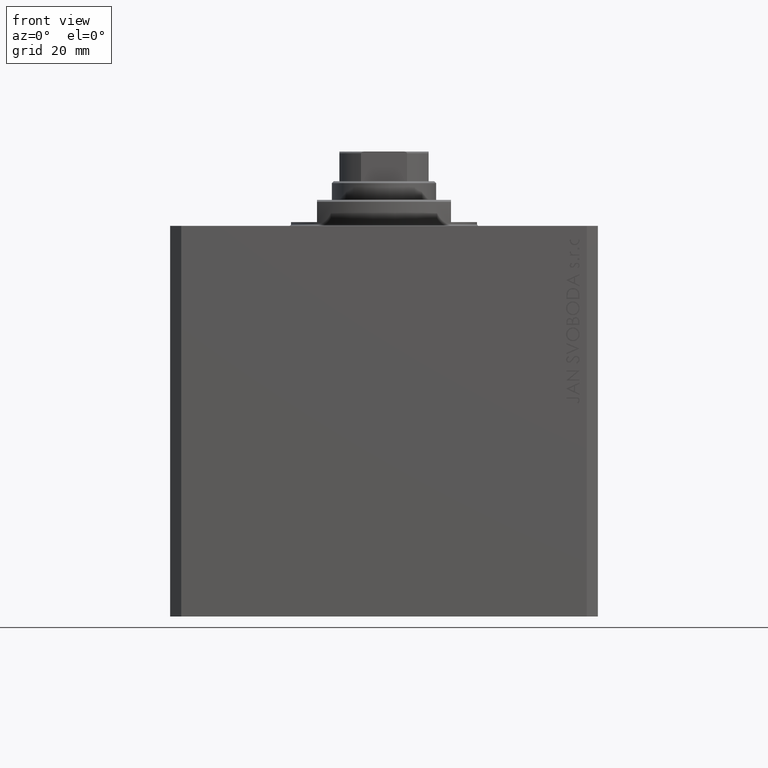
[diagram: clean part render]
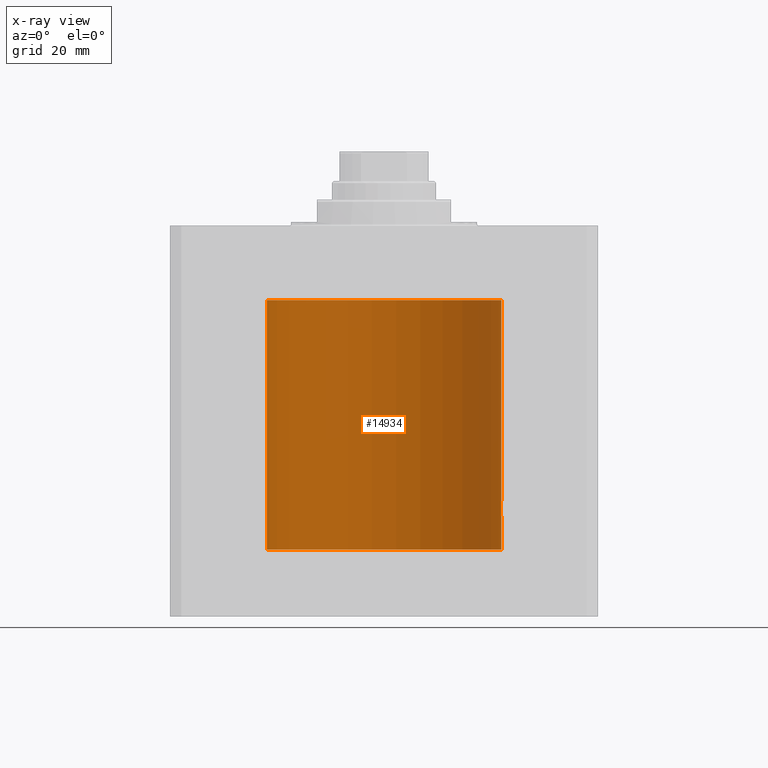
[diagram: x-ray — body ghosted, one internal face saturated and labeled with its STEP entity id]
A machine part, front view, then the same camera in x-ray: the body is ghosted and one INTERNAL B-rep face — a face not visible from any outside direction — is saturated and labeled: STEP entity #14934.
In plain terms, the highlighted cylindrical surface (partial cylindrical patch) has radius 31.5 mm, axis along (0, 0, 1).
Its self-contained STEP definition (entity closure, byte-faithful):
#64 = CARTESIAN_POINT ( 'NONE',  ( 31.47236118406704364, 1.322499398534437987, -77.50599456990816805 ) ) ;
#293 = CARTESIAN_POINT ( 'NONE',  ( 31.43644381923627051, 2.000000000000390354, -76.26103188650854747 ) ) ;
#411 = ORIENTED_EDGE ( 'NONE', *, *, #36221, .F. ) ;
#415 = ORIENTED_EDGE ( 'NONE', *, *, #8420, .T. ) ;
#521 = CARTESIAN_POINT ( 'NONE',  ( 31.50000000000000711, 0.1322106156816646727, -78.00000000000000000 ) ) ;
#874 = VERTEX_POINT ( 'NONE', #23960 ) ;
#982 = CARTESIAN_POINT ( 'NONE',  ( 31.50000000000000000, 2.115822464172388752E-15, -78.00000000000000000 ) ) ;
#2435 = CARTESIAN_POINT ( 'NONE',  ( 31.49916210907646175, 0.2630769646869197675, -74.01307666483570813 ) ) ;
#2665 = CARTESIAN_POINT ( 'NONE',  ( -31.50000000000000000, 3.857637408943224358E-15, -30.99999999999999645 ) ) ;
#2669 = CARTESIAN_POINT ( 'NONE',  ( 31.47243113015943550, 1.320912165297396079, -74.49247977760566641 ) ) ;
#2801 = CARTESIAN_POINT ( 'NONE',  ( 31.50000000000000000, -8.369814204394935255E-24, -74.00000000000000000 ) ) ;
#3419 = ORIENTED_EDGE ( 'NONE', *, *, #43892, .F. ) ;
#3468 = EDGE_CURVE ( 'NONE', #32495, #43297, #19816, .T. ) ;
#3474 = CARTESIAN_POINT ( 'NONE',  ( -31.44046365243112362, 1.935949445030092253, -29.51885062223535172 ) ) ;
#3639 = VECTOR ( 'NONE', #5669, 1000.000000000000000 ) ;
#3939 = CARTESIAN_POINT ( 'NONE',  ( -31.50000000000000000, 1.397936845058764387E-14, -27.00000000000000000 ) ) ;
#4280 = CARTESIAN_POINT ( 'NONE',  ( -31.50000000000000000, 3.857637417314162689E-15, -20.00000000000000355 ) ) ;
#4795 = CARTESIAN_POINT ( 'NONE',  ( 31.50000000000000000, 0.000000000000000000, -87.09999999999999432 ) ) ;
#5217 = VECTOR ( 'NONE', #34616, 1000.000000000000000 ) ;
#5669 = DIRECTION ( 'NONE',  ( -0.000000000000000000, -0.000000000000000000, 1.000000000000000000 ) ) ;
#7054 = CARTESIAN_POINT ( 'NONE',  ( -31.45993541206224720, 1.598922699014384996, -27.77056366933358689 ) ) ;
#7749 = CARTESIAN_POINT ( 'NONE',  ( -31.45990328919314649, 1.590516142808641842, -30.21952462249807425 ) ) ;
#7920 = CARTESIAN_POINT ( 'NONE',  ( 31.45161214644909364, 1.748160858796787398, -77.00590244996604383 ) ) ;
#8212 = CARTESIAN_POINT ( 'NONE',  ( 0.000000000000000000, 0.000000000000000000, -87.09999999999999432 ) ) ;
#8420 = EDGE_CURVE ( 'NONE', #13629, #32495, #18100, .T. ) ;
#8845 = VERTEX_POINT ( 'NONE', #37112 ) ;
#8881 = CARTESIAN_POINT ( 'NONE',  ( 31.43728213781475489, 1.986944500966173477, -75.73703800172732770 ) ) ;
#9011 = CARTESIAN_POINT ( 'NONE',  ( -31.50000000000000000, 3.857637417314162689E-15, -87.09999999999999432 ) ) ;
#9823 = EDGE_CURVE ( 'NONE', #40445, #13629, #37249, .T. ) ;
#10395 = CARTESIAN_POINT ( 'NONE',  ( -31.49600294595510164, 0.5178263803265128473, -27.06380656104273896 ) ) ;
#10428 = CIRCLE ( 'NONE', #46236, 31.50000000000000000 ) ;
#10646 = CARTESIAN_POINT ( 'NONE',  ( -31.47237164446477209, 1.322250186170389252, -27.49378908604443694 ) ) ;
#11110 = CARTESIAN_POINT ( 'NONE',  ( -31.45162599326494757, 1.747914105633341375, -27.99368423768024527 ) ) ;
#11328 = EDGE_CURVE ( 'NONE', #874, #40445, #40543, .T. ) ;
#11343 = CARTESIAN_POINT ( 'NONE',  ( -31.43727648790974172, 1.987033456253953112, -29.26230567213424294 ) ) ;
#11790 = CARTESIAN_POINT ( 'NONE',  ( -31.50000000000000000, 0.1305468079557571826, -31.00000000000000000 ) ) ;
#12132 = VECTOR ( 'NONE', #39455, 1000.000000000000000 ) ;
#12696 = CARTESIAN_POINT ( 'NONE',  ( 31.44280827872263018, 1.897980201673372669, -75.35592026268044208 ) ) ;
#12961 = VECTOR ( 'NONE', #29073, 1000.000000000000000 ) ;
#13413 = CARTESIAN_POINT ( 'NONE',  ( 31.50000000000000000, -8.369814204394935255E-24, -74.00000000000000000 ) ) ;
#13629 = VERTEX_POINT ( 'NONE', #2801 ) ;
#14205 = CARTESIAN_POINT ( 'NONE',  ( -31.49916865039979186, 0.2621451228717642246, -27.01297480444316079 ) ) ;
#14619 = CARTESIAN_POINT ( 'NONE',  ( 31.43989559156923264, 1.947546710638703438, -76.52437385228235200 ) ) ;
#14681 = CARTESIAN_POINT ( 'NONE',  ( -31.48424881603013148, 1.001951351791703804, -27.26414944111796856 ) ) ;
#14934 = ADVANCED_FACE ( 'NONE', ( #23230 ), #30154, .F. ) ;
#14969 = ORIENTED_EDGE ( 'NONE', *, *, #45921, .T. ) ;
#15084 = CARTESIAN_POINT ( 'NONE',  ( 31.43644381923627051, 2.000000000000389910, -76.00000000000000000 ) ) ;
#15143 = CARTESIAN_POINT ( 'NONE',  ( -31.49364602877929897, 0.6441674297270015837, -30.89795957697708317 ) ) ;
#16289 = B_SPLINE_CURVE_WITH_KNOTS ( 'NONE', 3,
 ( #3939, #18498, #14205, #10395, #21615, #43333, #14681, #43809, #10646, #7054, #11110, #29464, #40223, #36174, #11343, #3474, #18725, #25884, #24945, #7749, #22309, #36872, #28523, #39513, #41148, #15143, #41383, #44492, #11790, #26339 ),
 .UNSPECIFIED., .F., .F.,
 ( 4, 2, 2, 2, 2, 2, 2, 2, 2, 2, 2, 2, 2, 2, 4 ),
 ( 2.625213444697534148E-19, 0.0003909052907595647391, 0.0007818105815191293698, 0.001172715872278693892, 0.001563621163038258956, 0.002345431744557394723, 0.003127242326076530923, 0.003518147616836098807, 0.003909052907595665823, 0.004299958198355233706, 0.004690863489114801589, 0.005081768779874370340, 0.005472674070633938223, 0.005863579361393506106, 0.006254484652153074857 ),
 .UNSPECIFIED. ) ;
#16764 = CARTESIAN_POINT ( 'NONE',  ( 31.45991621267056004, 1.590260824275570029, -74.78014573967448086 ) ) ;
#17004 = CARTESIAN_POINT ( 'NONE',  ( 31.48776132734998967, 0.8863252928784766116, -74.20232887084928564 ) ) ;
#17335 = VERTEX_POINT ( 'NONE', #22537 ) ;
#17536 = AXIS2_PLACEMENT_3D ( 'NONE', #37880, #38358, #45534 ) ;
#18100 = LINE ( 'NONE', #32412, #12961 ) ;
#18208 = LINE ( 'NONE', #28698, #12132 ) ;
#18498 = CARTESIAN_POINT ( 'NONE',  ( -31.50000000000000711, 0.1321804137546035152, -27.00000000000000711 ) ) ;
#18528 = AXIS2_PLACEMENT_3D ( 'NONE', #8212, #29466, #33524 ) ;
#18725 = CARTESIAN_POINT ( 'NONE',  ( -31.44279716593210949, 1.898163692853223061, -29.64354408641193928 ) ) ;
#18898 = CARTESIAN_POINT ( 'NONE',  ( 31.48773468680478160, 0.8872681233992109062, -77.79720623967027393 ) ) ;
#19816 = CIRCLE ( 'NONE', #17536, 31.50000000000000000 ) ;
#20104 = CARTESIAN_POINT ( 'NONE',  ( 31.44869941755756315, 1.797728078038228094, -75.11380515043099138 ) ) ;
#21615 = CARTESIAN_POINT ( 'NONE',  ( -31.49363138352033431, 0.6448700584747274478, -27.10228292539639128 ) ) ;
#21994 = ORIENTED_EDGE ( 'NONE', *, *, #9823, .T. ) ;
#22115 = EDGE_LOOP ( 'NONE', ( #3419, #411, #14969, #46125, #21994, #415, #41014, #46056, #39559 ) ) ;
#22309 = CARTESIAN_POINT ( 'NONE',  ( -31.46402885784291215, 1.507852291435628045, -30.32053570646255736 ) ) ;
#22537 = CARTESIAN_POINT ( 'NONE',  ( 31.50000000000000000, 0.000000000000000000, -87.09999999999999432 ) ) ;
#23230 = FACE_OUTER_BOUND ( 'NONE', #22115, .T. ) ;
#23435 = CARTESIAN_POINT ( 'NONE',  ( 31.50000000000000711, 0.1305169792915977789, -73.99999999999998579 ) ) ;
#23676 = CARTESIAN_POINT ( 'NONE',  ( 31.43644381923627051, 2.000000000000389466, -75.86954368634472701 ) ) ;
#23911 = CARTESIAN_POINT ( 'NONE',  ( 31.49364883223205425, 0.6440257487116619606, -74.10199450781240671 ) ) ;
#23960 = CARTESIAN_POINT ( 'NONE',  ( 31.50000000000000000, 2.115822464172388752E-15, -78.00000000000000000 ) ) ;
#24945 = CARTESIAN_POINT ( 'NONE',  ( -31.45224836082999431, 1.735318303535943185, -30.00282216311122951 ) ) ;
#25492 = VERTEX_POINT ( 'NONE', #2665 ) ;
#25884 = CARTESIAN_POINT ( 'NONE',  ( -31.44868630248347330, 1.797956860106296073, -29.88573445525094385 ) ) ;
#26285 = CARTESIAN_POINT ( 'NONE',  ( 31.49600115550921231, 0.5179422407981758569, -77.93616446468720937 ) ) ;
#26339 = CARTESIAN_POINT ( 'NONE',  ( -31.50000000000000000, 3.857637408943224358E-15, -30.99999999999999645 ) ) ;
#26518 = CARTESIAN_POINT ( 'NONE',  ( 31.49916827061299074, 0.2622045237009018592, -77.98701932221887034 ) ) ;
#26966 = LINE ( 'NONE', #4795, #5217 ) ;
#28523 = CARTESIAN_POINT ( 'NONE',  ( -31.47655123270016375, 1.220027114947935809, -30.59012812369856960 ) ) ;
#28698 = CARTESIAN_POINT ( 'NONE',  ( -31.50000000000000000, 3.857637417314162689E-15, -87.09999999999999432 ) ) ;
#28901 = CARTESIAN_POINT ( 'NONE',  ( 31.50000000000000000, 0.000000000000000000, -20.00000000000000355 ) ) ;
#29073 = DIRECTION ( 'NONE',  ( -0.000000000000000000, -0.000000000000000000, 1.000000000000000000 ) ) ;
#29464 = CARTESIAN_POINT ( 'NONE',  ( -31.43990583976198039, 1.947383405442052906, -28.47504952007440693 ) ) ;
#29466 = DIRECTION ( 'NONE',  ( -0.000000000000000000, -0.000000000000000000, 1.000000000000000000 ) ) ;
#29633 = CARTESIAN_POINT ( 'NONE',  ( 31.45992223434330981, 1.599182806012581226, -77.22911007148194074 ) ) ;
#29772 = CARTESIAN_POINT ( 'NONE',  ( -31.50000000000000000, 1.397936845058764387E-14, -27.00000000000000000 ) ) ;
#30154 = CYLINDRICAL_SURFACE ( 'NONE', #18528, 31.50000000000000000 ) ;
#30227 = DIRECTION ( 'NONE',  ( 1.000000000000000000, 0.000000000000000000, 0.000000000000000000 ) ) ;
#31323 = CARTESIAN_POINT ( 'NONE',  ( 31.47656038302703507, 1.219789706799893736, -74.40969215575444196 ) ) ;
#32412 = CARTESIAN_POINT ( 'NONE',  ( 31.50000000000000000, 0.000000000000000000, -87.09999999999999432 ) ) ;
#32495 = VERTEX_POINT ( 'NONE', #28901 ) ;
#32852 = VERTEX_POINT ( 'NONE', #29772 ) ;
#33524 = DIRECTION ( 'NONE',  ( 1.000000000000000000, 0.000000000000000000, 0.000000000000000000 ) ) ;
#34616 = DIRECTION ( 'NONE',  ( -0.000000000000000000, -0.000000000000000000, 1.000000000000000000 ) ) ;
#34897 = CARTESIAN_POINT ( 'NONE',  ( 31.49597888575898708, 0.5193621964009169645, -74.06419610029345790 ) ) ;
#35139 = CARTESIAN_POINT ( 'NONE',  ( 31.44047330683569186, 1.935793094480600107, -75.48057478130489528 ) ) ;
#35506 = EDGE_CURVE ( 'NONE', #32852, #25492, #16289, .T. ) ;
#36174 = CARTESIAN_POINT ( 'NONE',  ( -31.43644085734510796, 2.000046555665927261, -29.12976806868835666 ) ) ;
#36221 = EDGE_CURVE ( 'NONE', #17335, #8845, #10428, .T. ) ;
#36872 = CARTESIAN_POINT ( 'NONE',  ( -31.47242045906136099, 1.321166510329244925, -30.50729961746650076 ) ) ;
#37112 = CARTESIAN_POINT ( 'NONE',  ( -31.50000000000000000, 3.857637417314162689E-15, -87.09999999999999432 ) ) ;
#37249 = B_SPLINE_CURVE_WITH_KNOTS ( 'NONE', 3,
 ( #46124, #23676, #8881, #35139, #12696, #20104, #42062, #16764, #38953, #2669, #31323, #45167, #17004, #23911, #34897, #2435, #23435, #13413 ),
 .UNSPECIFIED., .F., .F.,
 ( 4, 2, 2, 2, 2, 2, 2, 2, 4 ),
 ( 0.003127956870251400769, 0.003518772842989208258, 0.003909588815727015748, 0.004300404788464823672, 0.004691220761202631595, 0.005082036733940438651, 0.005472852706678246575, 0.005863668679416053631, 0.006254484652153861554 ),
 .UNSPECIFIED. ) ;
#37880 = CARTESIAN_POINT ( 'NONE',  ( 0.000000000000000000, 0.000000000000000000, -20.00000000000000355 ) ) ;
#38100 = CARTESIAN_POINT ( 'NONE',  ( 0.000000000000000000, 0.000000000000000000, -87.09999999999999432 ) ) ;
#38358 = DIRECTION ( 'NONE',  ( 0.000000000000000000, 0.000000000000000000, 1.000000000000000000 ) ) ;
#38953 = CARTESIAN_POINT ( 'NONE',  ( 31.46404119587053927, 1.507594711990248637, -74.67917285243763104 ) ) ;
#39239 = EDGE_CURVE ( 'NONE', #32852, #43297, #41709, .T. ) ;
#39455 = DIRECTION ( 'NONE',  ( -0.000000000000000000, -0.000000000000000000, 1.000000000000000000 ) ) ;
#39513 = CARTESIAN_POINT ( 'NONE',  ( -31.48420048909751756, 1.003425746290474763, -30.73496696875380607 ) ) ;
#39559 = ORIENTED_EDGE ( 'NONE', *, *, #35506, .T. ) ;
#40223 = CARTESIAN_POINT ( 'NONE',  ( -31.43644976744935349, 1.999906504661145057, -28.73831721771797731 ) ) ;
#40445 = VERTEX_POINT ( 'NONE', #43716 ) ;
#40543 = B_SPLINE_CURVE_WITH_KNOTS ( 'NONE', 3,
 ( #982, #521, #26518, #26285, #40856, #18898, #43747, #40621, #64, #29633, #7920, #14619, #293, #15084 ),
 .UNSPECIFIED., .F., .F.,
 ( 4, 2, 2, 2, 2, 2, 4 ),
 ( 2.056106459202125122E-18, 0.0003909946087814195124, 0.0007819892175628369649, 0.001172983826344254146, 0.001563978435125671761, 0.002345967652688536048, 0.003127956870251400769 ),
 .UNSPECIFIED. ) ;
#40621 = CARTESIAN_POINT ( 'NONE',  ( 31.47656968928225751, 1.219587704424721197, -77.59050234014505065 ) ) ;
#40856 = CARTESIAN_POINT ( 'NONE',  ( 31.49362851683618914, 0.6450141649083153128, -77.89767007611372662 ) ) ;
#41014 = ORIENTED_EDGE ( 'NONE', *, *, #3468, .T. ) ;
#41148 = CARTESIAN_POINT ( 'NONE',  ( -31.48775605676681266, 0.8865158617371098337, -30.79757944476694576 ) ) ;
#41383 = CARTESIAN_POINT ( 'NONE',  ( -31.49597709302052451, 0.5194777340345942962, -30.93577488239865758 ) ) ;
#41709 = LINE ( 'NONE', #9011, #3639 ) ;
#42062 = CARTESIAN_POINT ( 'NONE',  ( 31.45226167581968113, 1.735077252816683346, -74.99676481699547992 ) ) ;
#43297 = VERTEX_POINT ( 'NONE', #4280 ) ;
#43333 = CARTESIAN_POINT ( 'NONE',  ( -31.48773989768472603, 0.8870801819049330961, -27.20270307449468916 ) ) ;
#43716 = CARTESIAN_POINT ( 'NONE',  ( 31.43644381923627051, 2.000000000000389910, -76.00000000000000000 ) ) ;
#43747 = CARTESIAN_POINT ( 'NONE',  ( 31.48424227690098931, 1.002158581476553012, -77.73573328606775590 ) ) ;
#43809 = CARTESIAN_POINT ( 'NONE',  ( -31.47657892357849718, 1.219347894895174589, -27.40931637798618326 ) ) ;
#43892 = EDGE_CURVE ( 'NONE', #8845, #25492, #18208, .T. ) ;
#44492 = CARTESIAN_POINT ( 'NONE',  ( -31.49916171907896256, 0.2631371420809984762, -30.98691729972353315 ) ) ;
#45031 = DIRECTION ( 'NONE',  ( 0.000000000000000000, 0.000000000000000000, 1.000000000000000000 ) ) ;
#45167 = CARTESIAN_POINT ( 'NONE',  ( 31.48420706794360058, 1.003217712170301423, -74.26491493284291323 ) ) ;
#45534 = DIRECTION ( 'NONE',  ( 1.000000000000000000, 0.000000000000000000, 0.000000000000000000 ) ) ;
#45921 = EDGE_CURVE ( 'NONE', #17335, #874, #26966, .T. ) ;
#46056 = ORIENTED_EDGE ( 'NONE', *, *, #39239, .F. ) ;
#46124 = CARTESIAN_POINT ( 'NONE',  ( 31.43644381923627051, 2.000000000000389910, -76.00000000000000000 ) ) ;
#46125 = ORIENTED_EDGE ( 'NONE', *, *, #11328, .T. ) ;
#46236 = AXIS2_PLACEMENT_3D ( 'NONE', #38100, #45031, #30227 ) ;